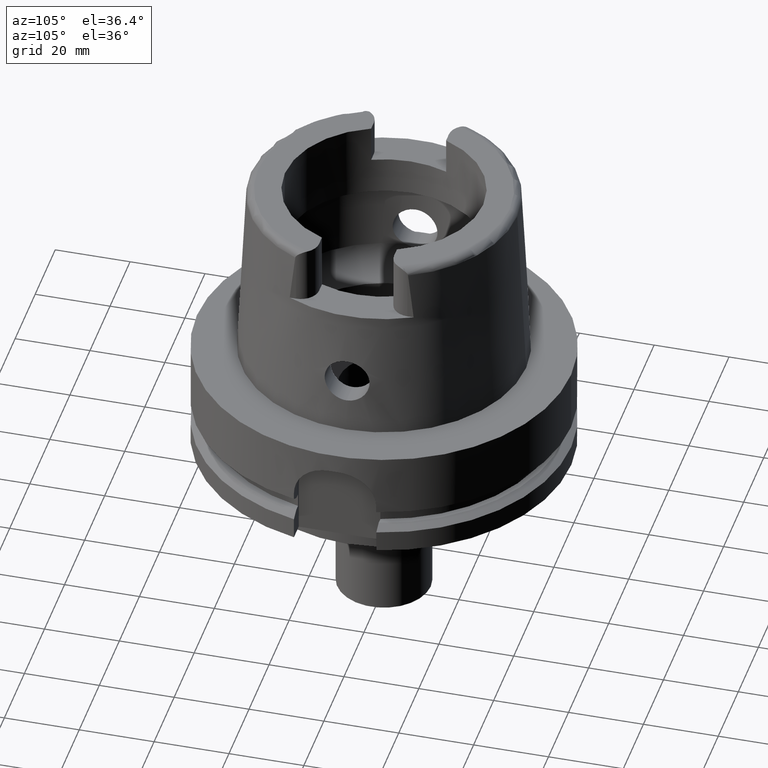
[diagram: clean part render]
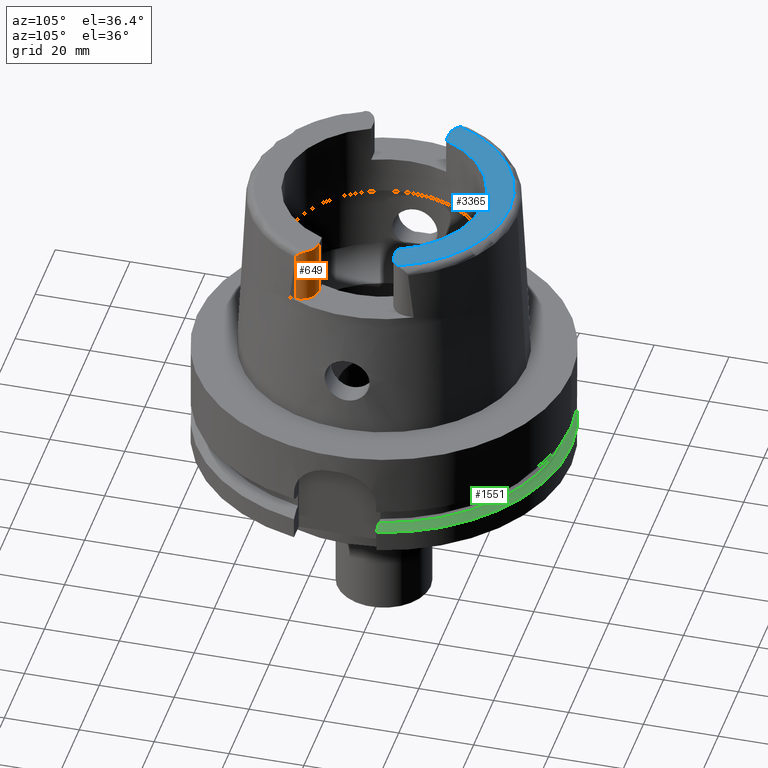
[diagram: same view with three faces highlighted in distinct colors, each labeled with its STEP entity id]
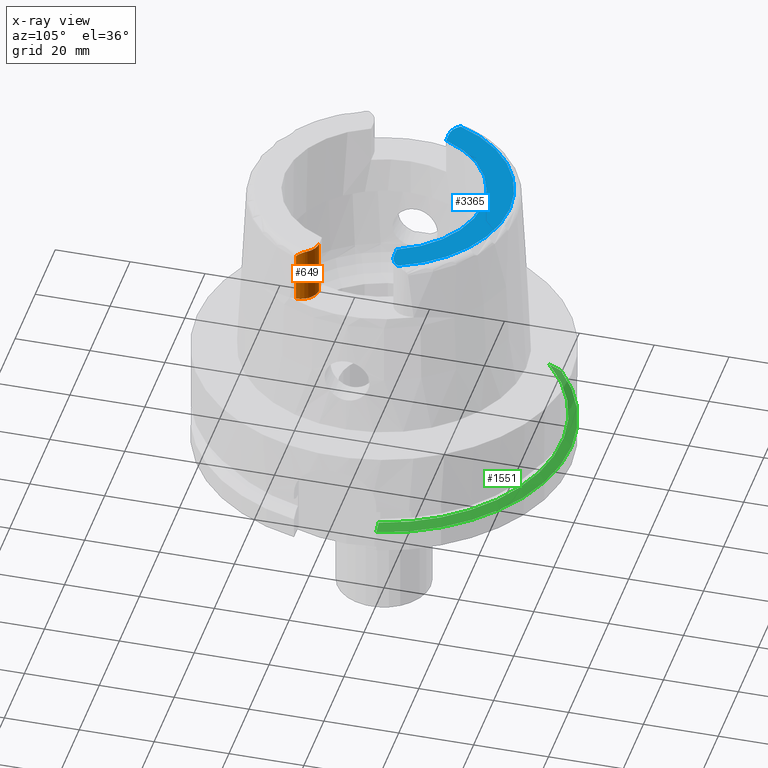
[diagram: x-ray of the same camera — body ghosted, the three highlighted faces saturated]
A machine part, auxiliary view with three faces highlighted in distinct colors.
The next image is the same camera in x-ray (body ghosted, the three faces saturated) — at least one of them is partly hidden behind the body in this view.
Their STEP definitions:

[orange] entity #649 — the highlighted cylindrical surface (edge-blend (fillet) strip) has radius 4.88 mm, axis along (0, 0, 1).
#107 = CARTESIAN_POINT ( 'NONE',  ( 32.22089363203411239, -14.35666166697789592, 49.09010808150981120 ) ) ;
#138 = CARTESIAN_POINT ( 'NONE',  ( 32.11433602679689869, -13.74730865535621049, 49.48862875367704106 ) ) ;
#143 = B_SPLINE_CURVE_WITH_KNOTS ( 'NONE', 3,
 ( #2242, #4432, #1473, #3942, #4799, #187, #1901, #1421, #1055, #3114, #3623, #2275, #3972, #2355, #5330, #138, #4886, #942, #2329, #570, #973, #107, #4830, #1847, #4006, #3549, #1364, #166 ),
 .UNSPECIFIED., .F., .F.,
 ( 4, 2, 2, 2, 2, 1, 1, 1, 2, 2, 2, 2, 1, 2, 2, 4 ),
 ( 0.0000000000000000000, 0.1250000000000206501, 0.1875000000000301703, 0.2500000000000396905, 0.3750000000000587308, 0.4375000000000688338, 0.4687500000000739964, 0.4843750000000770495, 0.4921875000000769940, 0.5000000000000768274, 0.6250000000000442979, 0.6875000000000290878, 0.7187500000000204281, 0.7343750000000185407, 0.7500000000000165423, 1.000000000000000000 ),
 .UNSPECIFIED. ) ;
#166 = CARTESIAN_POINT ( 'NONE',  ( 32.25000000000000000, -14.89000000000000057, 48.54599893821999501 ) ) ;
#187 = CARTESIAN_POINT ( 'NONE',  ( 31.74068122681460835, -12.71801178339918437, 49.91004114142113934 ) ) ;
#351 = DIRECTION ( 'NONE',  ( -2.098162679624000168E-14, 0.0000000000000000000, 1.000000000000000000 ) ) ;
#362 = VECTOR ( 'NONE', #351, 1000.000000000000000 ) ;
#483 = CIRCLE ( 'NONE', #5527, 4.880000000000002558 ) ;
#524 = ORIENTED_EDGE ( 'NONE', *, *, #2595, .F. ) ;
#570 = CARTESIAN_POINT ( 'NONE',  ( 32.20615404845139551, -14.23500837793433682, 49.18197115767380723 ) ) ;
#649 = ADVANCED_FACE ( 'NONE', ( #4160 ), #5460, .T. ) ;
#942 = CARTESIAN_POINT ( 'NONE',  ( 32.17063049026558730, -14.00567746920708423, 49.33867926595812037 ) ) ;
#973 = CARTESIAN_POINT ( 'NONE',  ( 32.21626620174020417, -14.31654215220049231, 49.12094445560817491 ) ) ;
#1046 = CARTESIAN_POINT ( 'NONE',  ( 32.25000000000000000, -14.89000000000000057, 48.54599893821999501 ) ) ;
#1055 = CARTESIAN_POINT ( 'NONE',  ( 31.93350493573828075, -13.15396565232990866, 49.77049879247502417 ) ) ;
#1172 = VERTEX_POINT ( 'NONE', #4578 ) ;
#1209 = AXIS2_PLACEMENT_3D ( 'NONE', #3849, #5581, #1731 ) ;
#1229 = VERTEX_POINT ( 'NONE', #1046 ) ;
#1255 = ORIENTED_EDGE ( 'NONE', *, *, #3259, .T. ) ;
#1266 = DIRECTION ( 'NONE',  ( 1.000000000000000000, 0.0000000000000000000, 0.0000000000000000000 ) ) ;
#1282 = EDGE_CURVE ( 'NONE', #3963, #5373, #483, .T. ) ;
#1364 = CARTESIAN_POINT ( 'NONE',  ( 32.25000000000000000, -14.78441575307584799, 48.70196230684016570 ) ) ;
#1421 = CARTESIAN_POINT ( 'NONE',  ( 31.87445326516435173, -13.00584407446037183, 49.82476952925020441 ) ) ;
#1473 = CARTESIAN_POINT ( 'NONE',  ( 31.51881228923712186, -12.31612973669476752, 49.98909589592984304 ) ) ;
#1688 = ORIENTED_EDGE ( 'NONE', *, *, #4860, .F. ) ;
#1731 = DIRECTION ( 'NONE',  ( 0.0000000000000000000, 1.000000000000000000, 0.0000000000000000000 ) ) ;
#1847 = CARTESIAN_POINT ( 'NONE',  ( 32.22749229660488623, -14.42166514600654104, 49.03779889266007785 ) ) ;
#1901 = CARTESIAN_POINT ( 'NONE',  ( 31.77433625116265858, -12.78698837874266303, 49.89134136211191617 ) ) ;
#2062 = LINE ( 'NONE', #3376, #362 ) ;
#2242 = CARTESIAN_POINT ( 'NONE',  ( 31.35385269249000473, -12.07161079256999869, 50.00000000000000000 ) ) ;
#2275 = CARTESIAN_POINT ( 'NONE',  ( 32.08291814461867375, -13.62292695568715750, 49.55547278113061083 ) ) ;
#2329 = CARTESIAN_POINT ( 'NONE',  ( 32.19827014238818208, -14.17892525515475199, 49.22179423087602146 ) ) ;
#2355 = CARTESIAN_POINT ( 'NONE',  ( 32.10705142361849340, -13.71746482818240409, 49.50498090705978171 ) ) ;
#2560 = DIRECTION ( 'NONE',  ( 1.000000000000000000, 0.0000000000000000000, 0.0000000000000000000 ) ) ;
#2595 = EDGE_CURVE ( 'NONE', #3963, #1229, #2062, .T. ) ;
#2939 = AXIS2_PLACEMENT_3D ( 'NONE', #3757, #5486, #1266 ) ;
#3109 = CIRCLE ( 'NONE', #1209, 4.879999999999999005 ) ;
#3114 = CARTESIAN_POINT ( 'NONE',  ( 32.01059982806545179, -13.37821913808301844, 49.67425841501120232 ) ) ;
#3259 = EDGE_CURVE ( 'NONE', #3748, #1229, #143, .T. ) ;
#3359 = CARTESIAN_POINT ( 'NONE',  ( 27.36999999999999744, -14.89000000000000057, 35.00000000000000000 ) ) ;
#3376 = CARTESIAN_POINT ( 'NONE',  ( 32.25000000000000000, -14.89000000000000057, 35.00000000000000000 ) ) ;
#3549 = CARTESIAN_POINT ( 'NONE',  ( 32.24711131445302925, -14.63643953430568523, 48.85884569442492165 ) ) ;
#3623 = CARTESIAN_POINT ( 'NONE',  ( 32.04627874561424505, -13.49086451148543553, 49.62242965820402674 ) ) ;
#3686 = EDGE_LOOP ( 'NONE', ( #1255, #524, #4184, #1688, #4011 ) ) ;
#3748 = VERTEX_POINT ( 'NONE', #5446 ) ;
#3757 = CARTESIAN_POINT ( 'NONE',  ( 27.36999999999999744, -14.89000000000000057, 50.00000000000000000 ) ) ;
#3793 = CARTESIAN_POINT ( 'NONE',  ( 27.36999999999999744, -10.00999999999999979, 50.00000000000000000 ) ) ;
#3797 = VECTOR ( 'NONE', #4652, 1000.000000000000000 ) ;
#3849 = CARTESIAN_POINT ( 'NONE',  ( 27.36999999999999744, -14.89000000000000057, 50.00000000000000000 ) ) ;
#3942 = CARTESIAN_POINT ( 'NONE',  ( 31.63279609018206173, -12.51329379614529635, 49.95638358371932952 ) ) ;
#3963 = VERTEX_POINT ( 'NONE', #3973 ) ;
#3972 = CARTESIAN_POINT ( 'NONE',  ( 32.09999709763344100, -13.68908660747494821, 49.52037184406098902 ) ) ;
#3973 = CARTESIAN_POINT ( 'NONE',  ( 32.25000000000000000, -14.89000000000000057, 35.00000000000000000 ) ) ;
#4006 = CARTESIAN_POINT ( 'NONE',  ( 32.22879182226371597, -14.43537589863577608, 49.02651181388360868 ) ) ;
#4011 = ORIENTED_EDGE ( 'NONE', *, *, #4410, .T. ) ;
#4160 = FACE_OUTER_BOUND ( 'NONE', #3686, .T. ) ;
#4184 = ORIENTED_EDGE ( 'NONE', *, *, #1282, .T. ) ;
#4344 = LINE ( 'NONE', #3793, #3797 ) ;
#4410 = EDGE_CURVE ( 'NONE', #1172, #3748, #3109, .T. ) ;
#4432 = CARTESIAN_POINT ( 'NONE',  ( 31.43815837255064238, -12.19077865257501259, 50.00000000000000711 ) ) ;
#4578 = CARTESIAN_POINT ( 'NONE',  ( 27.36999999999999744, -10.00999999999999979, 50.00000000000000000 ) ) ;
#4652 = DIRECTION ( 'NONE',  ( 0.0000000000000000000, 0.0000000000000000000, -1.000000000000000000 ) ) ;
#4692 = CARTESIAN_POINT ( 'NONE',  ( 27.36999999999999744, -10.00999999999999979, 35.00000000000000000 ) ) ;
#4799 = CARTESIAN_POINT ( 'NONE',  ( 31.66962358041132930, -12.58053593527560210, 49.94275345363162444 ) ) ;
#4830 = CARTESIAN_POINT ( 'NONE',  ( 32.22492855786656207, -14.39579594796002127, 49.05878717281309775 ) ) ;
#4860 = EDGE_CURVE ( 'NONE', #1172, #5373, #4344, .T. ) ;
#4886 = CARTESIAN_POINT ( 'NONE',  ( 32.14689414279951052, -13.88349590865122707, 49.41315704331343994 ) ) ;
#5330 = CARTESIAN_POINT ( 'NONE',  ( 32.11169544471666626, -13.73638861452022830, 49.49464302055741882 ) ) ;
#5373 = VERTEX_POINT ( 'NONE', #4692 ) ;
#5446 = CARTESIAN_POINT ( 'NONE',  ( 31.35385269249000473, -12.07161079256999869, 50.00000000000000000 ) ) ;
#5460 = CYLINDRICAL_SURFACE ( 'NONE', #2939, 4.880000000000002558 ) ;
#5486 = DIRECTION ( 'NONE',  ( 0.0000000000000000000, 0.0000000000000000000, 1.000000000000000000 ) ) ;
#5527 = AXIS2_PLACEMENT_3D ( 'NONE', #3359, #5541, #2560 ) ;
#5541 = DIRECTION ( 'NONE',  ( 0.0000000000000000000, 0.0000000000000000000, 1.000000000000000000 ) ) ;
#5581 = DIRECTION ( 'NONE',  ( 0.0000000000000000000, 0.0000000000000000000, -1.000000000000000000 ) ) ;

[blue] entity #3365 — the highlighted planar face has unit normal (0, 0, 1).
#280 = CARTESIAN_POINT ( 'NONE',  ( 0.0000000000000000000, 0.0000000000000000000, 50.00000000000000000 ) ) ;
#298 = FACE_OUTER_BOUND ( 'NONE', #1047, .T. ) ;
#456 = DIRECTION ( 'NONE',  ( 0.0000000000000000000, 0.0000000000000000000, -1.000000000000000000 ) ) ;
#473 = CARTESIAN_POINT ( 'NONE',  ( 27.36999999999999744, 14.89000000000000057, 50.00000000000000000 ) ) ;
#489 = DIRECTION ( 'NONE',  ( 1.000000000000000000, 1.429464217237000036E-13, 0.0000000000000000000 ) ) ;
#551 = LINE ( 'NONE', #4351, #4458 ) ;
#616 = EDGE_CURVE ( 'NONE', #687, #5222, #3740, .T. ) ;
#687 = VERTEX_POINT ( 'NONE', #2989 ) ;
#808 = CARTESIAN_POINT ( 'NONE',  ( -27.36999999999999744, 10.00999999999999979, 50.00000000000000000 ) ) ;
#866 = DIRECTION ( 'NONE',  ( 0.0000000000000000000, -1.000000000000000000, 0.0000000000000000000 ) ) ;
#888 = AXIS2_PLACEMENT_3D ( 'NONE', #3213, #2059, #5358 ) ;
#904 = VERTEX_POINT ( 'NONE', #808 ) ;
#1047 = EDGE_LOOP ( 'NONE', ( #1495, #2014, #3159, #5526, #1476, #4902, #5452 ) ) ;
#1103 = DIRECTION ( 'NONE',  ( -0.9332215253017949186, 0.3593015233941980191, 0.0000000000000000000 ) ) ;
#1347 = CARTESIAN_POINT ( 'NONE',  ( 24.53670515777999839, 10.00999999999999979, 50.00000000000000000 ) ) ;
#1399 = AXIS2_PLACEMENT_3D ( 'NONE', #280, #1959, #4547 ) ;
#1423 = AXIS2_PLACEMENT_3D ( 'NONE', #473, #4341, #2208 ) ;
#1474 = CARTESIAN_POINT ( 'NONE',  ( -31.35385269249000473, 12.07161079256999869, 50.00000000000000000 ) ) ;
#1476 = ORIENTED_EDGE ( 'NONE', *, *, #616, .F. ) ;
#1495 = ORIENTED_EDGE ( 'NONE', *, *, #1876, .T. ) ;
#1788 = VERTEX_POINT ( 'NONE', #2730 ) ;
#1856 = VERTEX_POINT ( 'NONE', #1347 ) ;
#1876 = EDGE_CURVE ( 'NONE', #904, #1788, #551, .T. ) ;
#1959 = DIRECTION ( 'NONE',  ( 0.0000000000000000000, 0.0000000000000000000, 1.000000000000000000 ) ) ;
#2014 = ORIENTED_EDGE ( 'NONE', *, *, #4438, .F. ) ;
#2035 = EDGE_CURVE ( 'NONE', #1856, #5269, #3803, .T. ) ;
#2059 = DIRECTION ( 'NONE',  ( 0.0000000000000000000, 0.0000000000000000000, 1.000000000000000000 ) ) ;
#2104 = VECTOR ( 'NONE', #3335, 1000.000000000000000 ) ;
#2112 = AXIS2_PLACEMENT_3D ( 'NONE', #4022, #3183, #4907 ) ;
#2208 = DIRECTION ( 'NONE',  ( 0.8163632566568778115, -0.5775387720149849358, 0.0000000000000000000 ) ) ;
#2304 = CIRCLE ( 'NONE', #5424, 4.879999999999999005 ) ;
#2459 = CARTESIAN_POINT ( 'NONE',  ( 0.0000000000000000000, 0.0000000000000000000, 50.00000000000000000 ) ) ;
#2730 = CARTESIAN_POINT ( 'NONE',  ( -24.53670515777999839, 10.00999999999999979, 50.00000000000000000 ) ) ;
#2872 = AXIS2_PLACEMENT_3D ( 'NONE', #2459, #4614, #1103 ) ;
#2989 = CARTESIAN_POINT ( 'NONE',  ( 31.35385269249000473, 12.07161079256999869, 50.00000000000000000 ) ) ;
#3159 = ORIENTED_EDGE ( 'NONE', *, *, #2035, .F. ) ;
#3183 = DIRECTION ( 'NONE',  ( 0.0000000000000000000, 0.0000000000000000000, 1.000000000000000000 ) ) ;
#3213 = CARTESIAN_POINT ( 'NONE',  ( 0.0000000000000000000, 0.0000000000000000000, 50.00000000000000000 ) ) ;
#3335 = DIRECTION ( 'NONE',  ( 1.000000000000000000, -1.423194637337000101E-13, 0.0000000000000000000 ) ) ;
#3365 = ADVANCED_FACE ( 'NONE', ( #298 ), #4590, .T. ) ;
#3436 = EDGE_CURVE ( 'NONE', #3923, #687, #3847, .T. ) ;
#3529 = CARTESIAN_POINT ( 'NONE',  ( 0.0000000000000000000, 26.50000000000000000, 50.00000000000000000 ) ) ;
#3740 = CIRCLE ( 'NONE', #1423, 4.880000000000001670 ) ;
#3750 = CARTESIAN_POINT ( 'NONE',  ( 24.53670515777999839, 10.00999999999999979, 50.00000000000000000 ) ) ;
#3803 = CIRCLE ( 'NONE', #1399, 26.50000000000000711 ) ;
#3847 = CIRCLE ( 'NONE', #2872, 33.59743838135999994 ) ;
#3923 = VERTEX_POINT ( 'NONE', #1474 ) ;
#4022 = CARTESIAN_POINT ( 'NONE',  ( 0.0000000000000000000, 0.0000000000000000000, 50.00000000000000000 ) ) ;
#4341 = DIRECTION ( 'NONE',  ( 0.0000000000000000000, 0.0000000000000000000, -1.000000000000000000 ) ) ;
#4351 = CARTESIAN_POINT ( 'NONE',  ( -27.36999999999999744, 10.00999999999999979, 50.00000000000000000 ) ) ;
#4356 = CARTESIAN_POINT ( 'NONE',  ( -27.36999999999999744, 14.89000000000000057, 50.00000000000000000 ) ) ;
#4438 = EDGE_CURVE ( 'NONE', #5269, #1788, #4815, .T. ) ;
#4458 = VECTOR ( 'NONE', #489, 1000.000000000000000 ) ;
#4547 = DIRECTION ( 'NONE',  ( 0.9259134021805098813, 0.3777358490566039562, 0.0000000000000000000 ) ) ;
#4580 = LINE ( 'NONE', #3750, #2104 ) ;
#4590 = PLANE ( 'NONE',  #888 ) ;
#4614 = DIRECTION ( 'NONE',  ( 0.0000000000000000000, 0.0000000000000000000, -1.000000000000000000 ) ) ;
#4815 = CIRCLE ( 'NONE', #2112, 26.50000000000000000 ) ;
#4902 = ORIENTED_EDGE ( 'NONE', *, *, #3436, .F. ) ;
#4907 = DIRECTION ( 'NONE',  ( 0.0000000000000000000, 1.000000000000000000, 0.0000000000000000000 ) ) ;
#5158 = EDGE_CURVE ( 'NONE', #1856, #5222, #4580, .T. ) ;
#5222 = VERTEX_POINT ( 'NONE', #5480 ) ;
#5269 = VERTEX_POINT ( 'NONE', #3529 ) ;
#5270 = EDGE_CURVE ( 'NONE', #904, #3923, #2304, .T. ) ;
#5358 = DIRECTION ( 'NONE',  ( 1.000000000000000000, 0.0000000000000000000, 0.0000000000000000000 ) ) ;
#5424 = AXIS2_PLACEMENT_3D ( 'NONE', #4356, #456, #866 ) ;
#5452 = ORIENTED_EDGE ( 'NONE', *, *, #5270, .F. ) ;
#5480 = CARTESIAN_POINT ( 'NONE',  ( 27.36999999999999744, 10.00999999999999979, 50.00000000000000000 ) ) ;
#5526 = ORIENTED_EDGE ( 'NONE', *, *, #5158, .T. ) ;

[green] entity #1551 — the highlighted conical surface has half-angle 60 deg.
#148 = VERTEX_POINT ( 'NONE', #3039 ) ;
#212 = CIRCLE ( 'NONE', #2215, 50.00000000000000711 ) ;
#221 = EDGE_CURVE ( 'NONE', #800, #4031, #212, .T. ) ;
#222 = CARTESIAN_POINT ( 'NONE',  ( -31.50000000000000000, 37.76623563873953771, -22.77076145791643569 ) ) ;
#374 = VERTEX_POINT ( 'NONE', #1107 ) ;
#485 = B_SPLINE_CURVE_WITH_KNOTS ( 'NONE', 3,
 ( #3649, #5037, #3318, #5008, #2904, #1078 ),
 .UNSPECIFIED., .F., .F.,
 ( 4, 1, 1, 4 ),
 ( 0.0000000000000000000, 0.3333333333333000081, 0.6666666666667000474, 1.000000000000000000 ),
 .UNSPECIFIED. ) ;
#580 = CARTESIAN_POINT ( 'NONE',  ( 0.0000000000000000000, 0.0000000000000000000, -22.56129763209999695 ) ) ;
#800 = VERTEX_POINT ( 'NONE', #4801 ) ;
#1078 = CARTESIAN_POINT ( 'NONE',  ( 46.33477721644000269, 11.00000000000000000, -21.87500000000000000 ) ) ;
#1089 = B_SPLINE_CURVE_WITH_KNOTS ( 'NONE', 3,
 ( #4520, #2386, #222, #2067 ),
 .UNSPECIFIED., .F., .F.,
 ( 4, 4 ),
 ( 0.0000000000000000000, 1.000000000000000000 ),
 .UNSPECIFIED. ) ;
#1107 = CARTESIAN_POINT ( 'NONE',  ( 46.33477721644000269, 11.00000000000000000, -21.87500000000000000 ) ) ;
#1300 = AXIS2_PLACEMENT_3D ( 'NONE', #580, #2316, #4872 ) ;
#1551 = ADVANCED_FACE ( 'NONE', ( #4443 ), #3997, .T. ) ;
#1561 = DIRECTION ( 'NONE',  ( 0.0000000000000000000, 0.0000000000000000000, -1.000000000000000000 ) ) ;
#1953 = CARTESIAN_POINT ( 'NONE',  ( 0.0000000000000000000, 0.0000000000000000000, -21.87500000000000000 ) ) ;
#2047 = ORIENTED_EDGE ( 'NONE', *, *, #2383, .T. ) ;
#2067 = CARTESIAN_POINT ( 'NONE',  ( -31.50000355985999789, 38.82975374283000036, -23.24760820811999906 ) ) ;
#2215 = AXIS2_PLACEMENT_3D ( 'NONE', #3680, #1561, #3295 ) ;
#2316 = DIRECTION ( 'NONE',  ( 0.0000000000000000000, 0.0000000000000000000, -1.000000000000000000 ) ) ;
#2383 = EDGE_CURVE ( 'NONE', #148, #374, #4005, .T. ) ;
#2386 = CARTESIAN_POINT ( 'NONE',  ( -31.50000000000000000, 36.72844978580286579, -22.31322538854309911 ) ) ;
#2416 = ORIENTED_EDGE ( 'NONE', *, *, #3429, .F. ) ;
#2904 = CARTESIAN_POINT ( 'NONE',  ( 46.60605711264999940, 11.00000000000000000, -22.02738808210999721 ) ) ;
#3039 = CARTESIAN_POINT ( 'NONE',  ( -31.50000097288999967, 35.71639618401999883, -21.87500000000000000 ) ) ;
#3076 = ORIENTED_EDGE ( 'NONE', *, *, #221, .F. ) ;
#3295 = DIRECTION ( 'NONE',  ( -0.6299999999999789102, 0.7765951326141738997, 0.0000000000000000000 ) ) ;
#3318 = CARTESIAN_POINT ( 'NONE',  ( 47.96191616323000062, 11.00000000000000000, -22.78979543230000004 ) ) ;
#3429 = EDGE_CURVE ( 'NONE', #4031, #374, #485, .T. ) ;
#3649 = CARTESIAN_POINT ( 'NONE',  ( 48.77499359303000404, 11.00000000000000000, -23.24759526419000011 ) ) ;
#3671 = EDGE_CURVE ( 'NONE', #148, #800, #1089, .T. ) ;
#3680 = CARTESIAN_POINT ( 'NONE',  ( 0.0000000000000000000, 0.0000000000000000000, -23.24759526419000011 ) ) ;
#3997 = CONICAL_SURFACE ( 'NONE', #1300, 48.81129763208999606, 1.047197551196400456 ) ;
#4005 = CIRCLE ( 'NONE', #4725, 47.62259526418999656 ) ;
#4031 = VERTEX_POINT ( 'NONE', #4913 ) ;
#4443 = FACE_OUTER_BOUND ( 'NONE', #4717, .T. ) ;
#4520 = CARTESIAN_POINT ( 'NONE',  ( -31.50000097288999967, 35.71639618401999883, -21.87500000000000000 ) ) ;
#4540 = DIRECTION ( 'NONE',  ( 0.0000000000000000000, 1.000000000000000000, 0.0000000000000000000 ) ) ;
#4563 = DIRECTION ( 'NONE',  ( 0.0000000000000000000, 0.0000000000000000000, -1.000000000000000000 ) ) ;
#4717 = EDGE_LOOP ( 'NONE', ( #4995, #2047, #2416, #3076 ) ) ;
#4725 = AXIS2_PLACEMENT_3D ( 'NONE', #1953, #4563, #4540 ) ;
#4801 = CARTESIAN_POINT ( 'NONE',  ( -31.50000355985999789, 38.82975374283000036, -23.24760820811999906 ) ) ;
#4872 = DIRECTION ( 'NONE',  ( 0.0000000000000000000, -1.000000000000000000, 0.0000000000000000000 ) ) ;
#4913 = CARTESIAN_POINT ( 'NONE',  ( 48.77499359303000404, 11.00000000000000000, -23.24759526419000011 ) ) ;
#4995 = ORIENTED_EDGE ( 'NONE', *, *, #3671, .F. ) ;
#5008 = CARTESIAN_POINT ( 'NONE',  ( 47.14851446809999658, 11.00000000000000000, -22.33225649733000040 ) ) ;
#5037 = CARTESIAN_POINT ( 'NONE',  ( 48.50399904748000068, 11.00000000000000000, -23.09496975037999889 ) ) ;